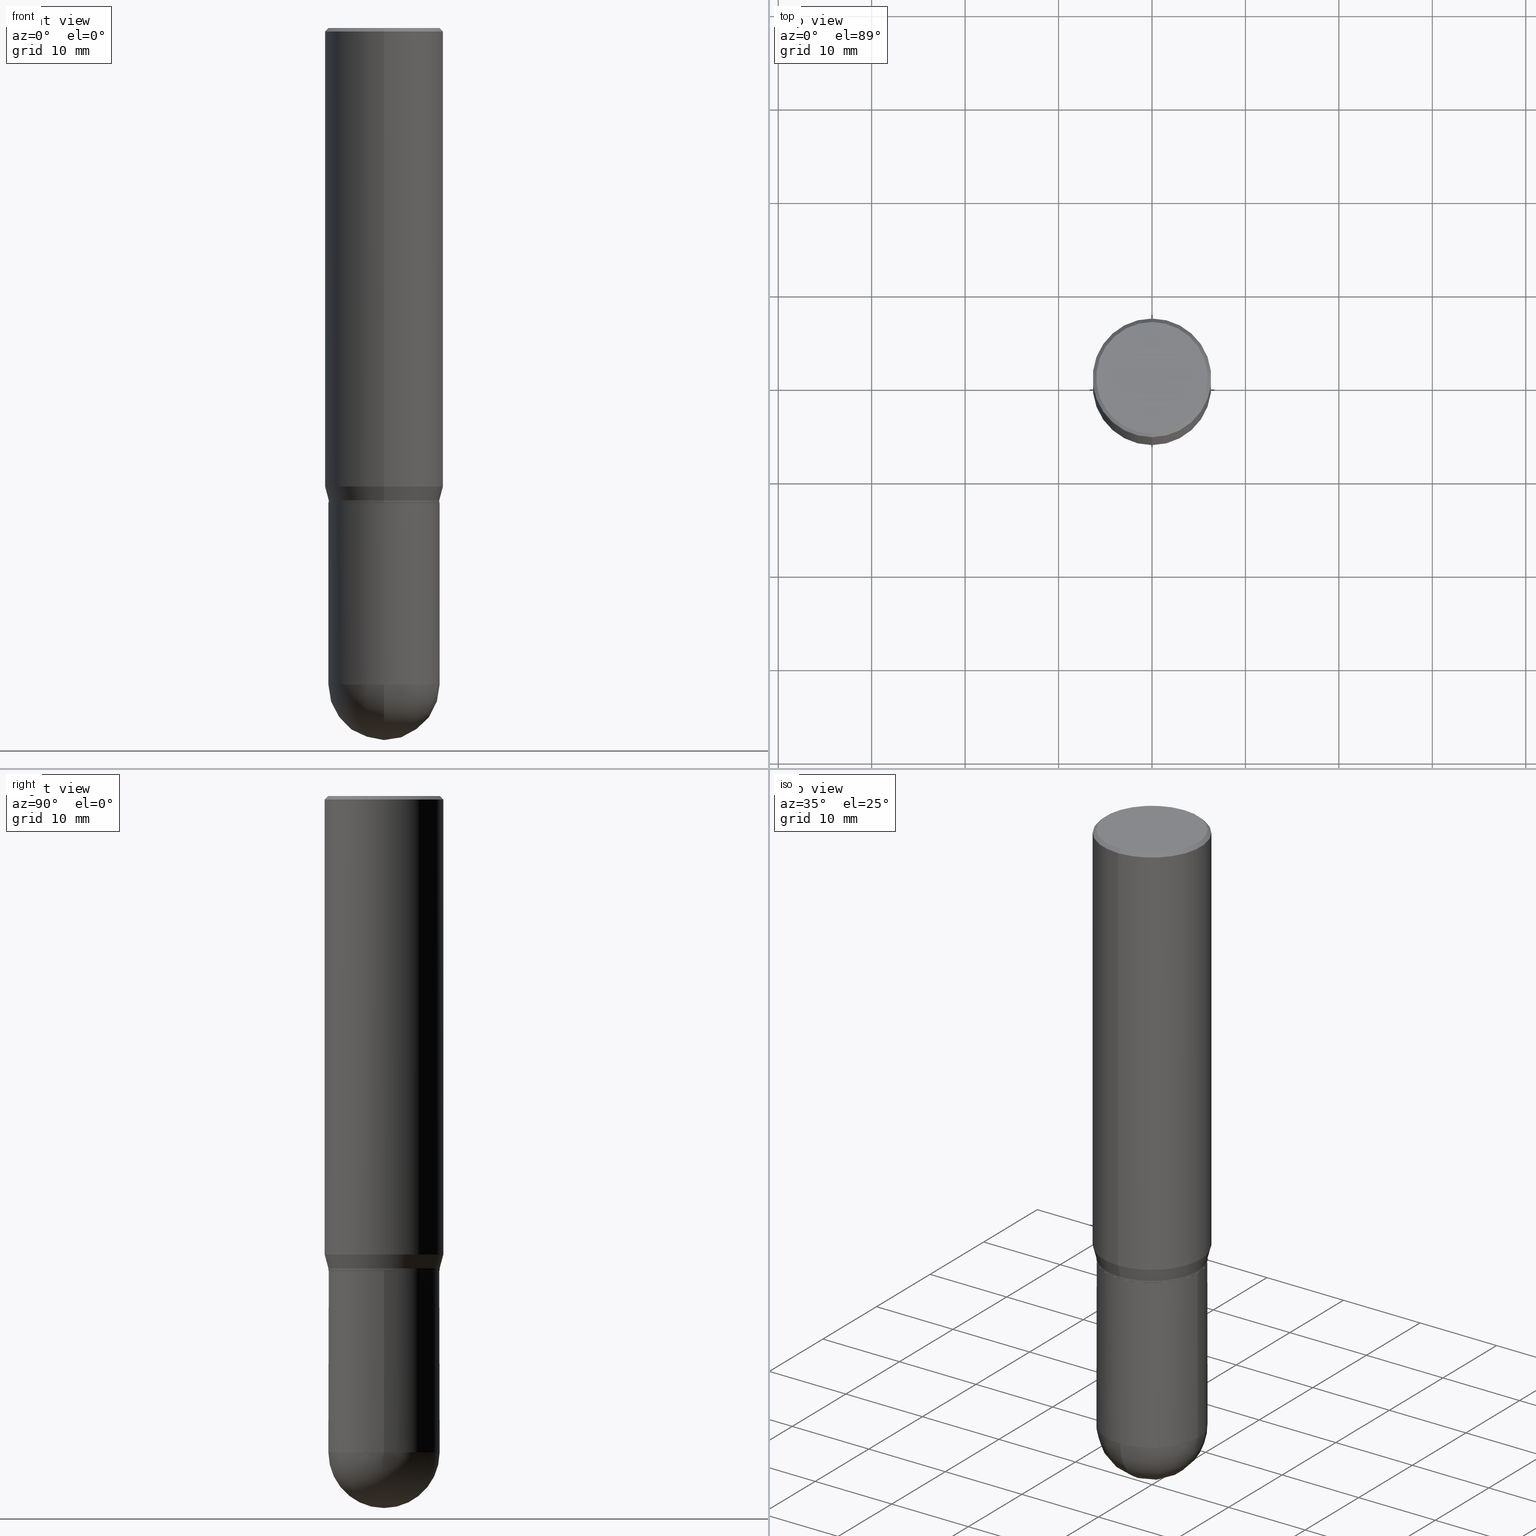
[diagram: canonical four-view strip — front | top / right | iso, engineering-drawing reading convention]
A machine part, canonical four-view strip (front | top / right | iso — engineering-drawing reading convention). The complete STEP part file that produces these views, byte-faithful:
ISO-10303-21;
HEADER;
FILE_DESCRIPTION (( 'STEP AP203' ),
    '1' );
FILE_NAME ('30500.STEP',
    '2024-03-08T15:28:09',
    ( '' ),
    ( '' ),
    'SwSTEP 2.0',
    'SolidWorks 2023',
    '' );
FILE_SCHEMA (( 'CONFIG_CONTROL_DESIGN' ));
ENDSEC;

DATA;
#1 = DIRECTION ( 'NONE',  ( -6.982962677686265922E-15, -1.000000000000000000, 3.503866601536036525E-15 ) ) ;
#2 = APPROVAL_ROLE ( '' ) ;
#3 = CARTESIAN_POINT ( 'NONE',  ( 1.693368449338919598E-15, 0.2349999999999999867, -9.852262505269361309E-16 ) ) ;
#4 = ORIENTED_EDGE ( 'NONE', *, *, #336, .T. ) ;
#5 = COORDINATED_UNIVERSAL_TIME_OFFSET ( 5, 0, .BEHIND. ) ;
#6 = FACE_OUTER_BOUND ( 'NONE', #465, .T. ) ;
#7 = VERTEX_POINT ( 'NONE', #25 ) ;
#8 = CIRCLE ( 'NONE', #470, 0.2500000000000000000 ) ;
#9 = DIRECTION ( 'NONE',  ( -6.982962677686265922E-15, -1.000000000000000000, 3.491087603084271538E-15 ) ) ;
#10 = CARTESIAN_POINT ( 'NONE',  ( 6.743143432567249767E-29, -9.684746511676618226E-15, -2.765600000000000058 ) ) ;
#11 = ORIENTED_EDGE ( 'NONE', *, *, #509, .F. ) ;
#12 = DIRECTION ( 'NONE',  ( -6.982962677686265922E-15, -1.000000000000000000, 3.491087603084271144E-15 ) ) ;
#13 = EDGE_LOOP ( 'NONE', ( #412, #492 ) ) ;
#14 = AXIS2_PLACEMENT_3D ( 'NONE', #136, #347, #141 ) ;
#15 = APPROVAL_PERSON_ORGANIZATION ( #105, #309, #64 ) ;
#16 = EDGE_CURVE ( 'NONE', #51, #308, #266, .T. ) ;
#17 = CARTESIAN_POINT ( 'NONE',  ( 4.891487500792091851E-29, -6.982175206168543076E-15, -2.000000000000000444 ) ) ;
#18 = EDGE_LOOP ( 'NONE', ( #277, #252, #447, #131 ) ) ;
#19 = DIRECTION ( 'NONE',  ( 1.000000000000000000, -6.982962677686269077E-15, 0.000000000000000000 ) ) ;
#20 = ORIENTED_EDGE ( 'NONE', *, *, #229, .T. ) ;
#21 =( CONVERSION_BASED_UNIT ( 'INCH', #342 ) LENGTH_UNIT ( ) NAMED_UNIT ( #271 ) );
#22 = EDGE_LOOP ( 'NONE', ( #500, #244 ) ) ;
#23 = AXIS2_PLACEMENT_3D ( 'NONE', #197, #35, #238 ) ;
#24 = DIRECTION ( 'NONE',  ( -2.445743750396045645E-29, 3.491087603084271538E-15, 1.000000000000000000 ) ) ;
#25 = CARTESIAN_POINT ( 'NONE',  ( -1.636806451649611410E-15, -0.2344000000000068529, -1.989999999999999547 ) ) ;
#26 = DIRECTION ( 'NONE',  ( 6.982962677686265922E-15, 1.000000000000000000, -3.491643216902136408E-15 ) ) ;
#27 = CARTESIAN_POINT ( 'NONE',  ( 6.743143432567249767E-29, -9.684746511676618226E-15, -2.765600000000000058 ) ) ;
#28 = AXIS2_PLACEMENT_3D ( 'NONE', #299, #300, #417 ) ;
#29 = EDGE_CURVE ( 'NONE', #407, #51, #383, .T. ) ;
#30 = AXIS2_PLACEMENT_3D ( 'NONE', #219, #310, #382 ) ;
#31 = LINE ( 'NONE', #378, #428 ) ;
#32 = ORIENTED_EDGE ( 'NONE', *, *, #167, .T. ) ;
#33 = PERSON_AND_ORGANIZATION ( #350, #410 ) ;
#34 = CARTESIAN_POINT ( 'NONE',  ( 4.890264628916893960E-29, -6.980429662367000588E-15, -1.999500000000000277 ) ) ;
#35 = DIRECTION ( 'NONE',  ( -2.445468806185136597E-29, 3.491481338843145583E-15, 1.000000000000000000 ) ) ;
#36 = CC_DESIGN_PERSON_AND_ORGANIZATION_ASSIGNMENT ( #33, #473, ( #87 ) ) ;
#37 = AXIS2_PLACEMENT_3D ( 'NONE', #430, #228, #193 ) ;
#38 = CARTESIAN_POINT ( 'NONE',  ( 3.668615625594108632E-31, -5.236631404626464376E-17, -0.01500000000000016424 ) ) ;
#39 = DIRECTION ( 'NONE',  ( -6.982962677686265133E-15, -1.000000000000000000, 3.491087603084271144E-15 ) ) ;
#40 = EDGE_CURVE ( 'NONE', #436, #51, #99, .T. ) ;
#41 = LINE ( 'NONE', #471, #249 ) ;
#42 = MANIFOLD_SOLID_BREP ( 'Body-Move/Copy2[2]', #241 ) ;
#43 = ADVANCED_BREP_SHAPE_REPRESENTATION ( '30500', ( #47, #42, #30 ), #278 ) ;
#44 = CARTESIAN_POINT ( 'NONE',  ( 1.636806451649709623E-15, 0.2343999999999930306, -2.000000000000000888 ) ) ;
#45 = AXIS2_PLACEMENT_3D ( 'NONE', #38, #240, #511 ) ;
#46 = AXIS2_PLACEMENT_3D ( 'NONE', #182, #345, #26 ) ;
#47 = MANIFOLD_SOLID_BREP ( 'Body-Move/Copy2[1]', #481 ) ;
#48 = FACE_OUTER_BOUND ( 'NONE', #57, .T. ) ;
#49 = VERTEX_POINT ( 'NONE', #468 ) ;
#50 = FACE_OUTER_BOUND ( 'NONE', #74, .T. ) ;
#51 = VERTEX_POINT ( 'NONE', #386 ) ;
#52 = CC_DESIGN_PERSON_AND_ORGANIZATION_ASSIGNMENT ( #431, #151, ( #504 ) ) ;
#53 = CARTESIAN_POINT ( 'NONE',  ( 0.000000000000000000, 0.000000000000000000, 0.000000000000000000 ) ) ;
#54 = VERTEX_POINT ( 'NONE', #222 ) ;
#55 = DIRECTION ( 'NONE',  ( -2.445743750396045645E-29, 3.491087603084271144E-15, 1.000000000000000000 ) ) ;
#56 = ORIENTED_EDGE ( 'NONE', *, *, #336, .F. ) ;
#57 = EDGE_LOOP ( 'NONE', ( #291, #162, #248, #335, #288 ) ) ;
#58 = FACE_OUTER_BOUND ( 'NONE', #22, .T. ) ;
#59 = ORIENTED_EDGE ( 'NONE', *, *, #186, .F. ) ;
#60 = AXIS2_PLACEMENT_3D ( 'NONE', #477, #483, #39 ) ;
#61 = AXIS2_PLACEMENT_3D ( 'NONE', #10, #371, #243 ) ;
#62 = EDGE_LOOP ( 'NONE', ( #433, #452, #4, #143 ) ) ;
#63 = EDGE_CURVE ( 'NONE', #449, #246, #103, .T. ) ;
#64 = APPROVAL_ROLE ( '' ) ;
#65 = CARTESIAN_POINT ( 'NONE',  ( 7.326383869646227962E-29, -1.048879687701544429E-14, -3.000000000000000444 ) ) ;
#66 = FACE_OUTER_BOUND ( 'NONE', #62, .T. ) ;
#67 = VERTEX_POINT ( 'NONE', #227 ) ;
#68 = PRODUCT ( '30500', '30500', '', ( #375 ) ) ;
#69 = AXIS2_PLACEMENT_3D ( 'NONE', #348, #261, #224 ) ;
#70 = DIRECTION ( 'NONE',  ( 6.982962677686265922E-15, 1.000000000000000000, -2.330928322239131291E-15 ) ) ;
#71 = APPROVAL_STATUS ( 'not_yet_approved' ) ;
#72 = CARTESIAN_POINT ( 'NONE',  ( 6.743143432567249767E-29, -9.684746511676618226E-15, -2.765600000000000058 ) ) ;
#73 = FACE_OUTER_BOUND ( 'NONE', #187, .T. ) ;
#74 = EDGE_LOOP ( 'NONE', ( #478, #98, #349, #374 ) ) ;
#75 = APPROVAL_DATE_TIME ( #111, #309 ) ;
#76 = AXIS2_PLACEMENT_3D ( 'NONE', #421, #463, #305 ) ;
#77 = AXIS2_PLACEMENT_3D ( 'NONE', #339, #415, #107 ) ;
#78 = SPHERICAL_SURFACE ( 'NONE', #363, 0.2344000000000001083 ) ;
#79 = EDGE_CURVE ( 'NONE', #217, #414, #83, .T. ) ;
#80 = LINE ( 'NONE', #199, #175 ) ;
#81 = PRODUCT_DEFINITION ( 'UNKNOWN', '', #87, #203 ) ;
#82 = CARTESIAN_POINT ( 'NONE',  ( 4.867030063288131795E-29, -6.947264330137701209E-15, -1.990000000000000435 ) ) ;
#83 = CIRCLE ( 'NONE', #443, 0.2344000000000000250 ) ;
#84 = DIRECTION ( 'NONE',  ( -2.445743750396045645E-29, 3.491087603084271144E-15, 1.000000000000000000 ) ) ;
#85 = AXIS2_PLACEMENT_3D ( 'NONE', #82, #280, #281 ) ;
#86 = ORIENTED_EDGE ( 'NONE', *, *, #303, .T. ) ;
#87 = PRODUCT_DEFINITION_FORMATION_WITH_SPECIFIED_SOURCE ( 'ANY', '', #68, .NOT_KNOWN. ) ;
#88 = CARTESIAN_POINT ( 'NONE',  ( 4.867030063288131795E-29, -6.947264330137701209E-15, -1.990000000000000435 ) ) ;
#89 = ADVANCED_FACE ( 'NONE', ( #344 ), #138, .T. ) ;
#90 = EDGE_LOOP ( 'NONE', ( #370, #178, #333, #262 ) ) ;
#91 = DIRECTION ( 'NONE',  ( -2.445468806185136597E-29, 3.491481338843145583E-15, 1.000000000000000000 ) ) ;
#92 = ORIENTED_EDGE ( 'NONE', *, *, #503, .F. ) ;
#93 = DIRECTION ( 'NONE',  ( -6.982962677686266711E-15, -1.000000000000000000, 3.491087603084271144E-15 ) ) ;
#94 = ORIENTED_EDGE ( 'NONE', *, *, #396, .F. ) ;
#95 = CONICAL_SURFACE ( 'NONE', #388, 0.2338999999999999968, 0.7853981633974824739 ) ;
#96 = CONICAL_SURFACE ( 'NONE', #226, 0.2343999999999999417, 0.2617993877991500740 ) ;
#97 = CARTESIAN_POINT ( 'NONE',  ( 1.663735815782323276E-15, 0.2338999999999930302, -2.000000000000000888 ) ) ;
#98 = ORIENTED_EDGE ( 'NONE', *, *, #509, .T. ) ;
#99 = LINE ( 'NONE', #311, #233 ) ;
#100 = APPLICATION_PROTOCOL_DEFINITION ( 'international standard', 'config_control_design', 1994, #148 ) ;
#101 = EDGE_CURVE ( 'NONE', #414, #490, #163, .T. ) ;
#102 = DIRECTION ( 'NONE',  ( -2.445743750396045645E-29, 3.491087603084271144E-15, 1.000000000000000000 ) ) ;
#103 = CIRCLE ( 'NONE', #495, 0.2343999999999999417 ) ;
#104 = CONICAL_SURFACE ( 'NONE', #461, 0.2338999999999999968, 0.7853981633974824739 ) ;
#105 = PERSON_AND_ORGANIZATION ( #350, #410 ) ;
#106 = DIRECTION ( 'NONE',  ( -4.851104656540965064E-15, -0.7071067811865501263, -0.7071067811865449082 ) ) ;
#107 = DIRECTION ( 'NONE',  ( -6.982962677686265922E-15, -1.000000000000000000, 3.491643216902136408E-15 ) ) ;
#108 = CARTESIAN_POINT ( 'NONE',  ( 3.668615625594108632E-31, -5.236631404626464376E-17, -0.01500000000000016424 ) ) ;
#109 = LINE ( 'NONE', #264, #209 ) ;
#110 = DIRECTION ( 'NONE',  ( -2.445468806185136597E-29, 3.491481338843145583E-15, 1.000000000000000000 ) ) ;
#111 = DATE_AND_TIME ( #385, #315 ) ;
#112 = DIRECTION ( 'NONE',  ( -4.937700262164715281E-15, -0.7071067811865691111, 0.7071067811865257013 ) ) ;
#113 = FACE_OUTER_BOUND ( 'NONE', #13, .T. ) ;
#114 = CALENDAR_DATE ( 2024, 8, 3 ) ;
#115 = CARTESIAN_POINT ( 'NONE',  ( 4.724638880243287230E-29, -6.744013235726904476E-15, -1.931780007401925792 ) ) ;
#116 = EDGE_CURVE ( 'NONE', #331, #67, #337, .T. ) ;
#117 = DATE_AND_TIME ( #237, #487 ) ;
#118 = CIRCLE ( 'NONE', #304, 0.2349999999999999867 ) ;
#119 = VECTOR ( 'NONE', #292, 39.37007874015748143 ) ;
#120 = DIRECTION ( 'NONE',  ( -6.982962677686265922E-15, -1.000000000000000000, 3.278217592397115862E-15 ) ) ;
#121 = EDGE_CURVE ( 'NONE', #183, #407, #118, .T. ) ;
#122 = DIRECTION ( 'NONE',  ( -1.000000000000000000, 6.982962677686265922E-15, -4.876176775795935793E-29 ) ) ;
#123 = CYLINDRICAL_SURFACE ( 'NONE', #454, 0.2500000000000000000 ) ;
#124 = ORIENTED_EDGE ( 'NONE', *, *, #40, .T. ) ;
#125 = EDGE_CURVE ( 'NONE', #49, #494, #216, .T. ) ;
#126 = CARTESIAN_POINT ( 'NONE',  ( 6.743143432567249767E-29, -9.684746511676618226E-15, -2.765600000000000058 ) ) ;
#127 = VERTEX_POINT ( 'NONE', #65 ) ;
#128 = DIRECTION ( 'NONE',  ( -2.445468806185136597E-29, 3.491481338843145583E-15, 1.000000000000000000 ) ) ;
#129 = ORIENTED_EDGE ( 'NONE', *, *, #512, .F. ) ;
#130 = CARTESIAN_POINT ( 'NONE',  ( 1.665512172621674027E-15, 0.2343999999999999417, -8.183109341629529148E-16 ) ) ;
#131 = ORIENTED_EDGE ( 'NONE', *, *, #229, .F. ) ;
#132 = CARTESIAN_POINT ( 'NONE',  ( 4.891487500792091851E-29, -6.982175206168543076E-15, -2.000000000000000444 ) ) ;
#133 = EDGE_LOOP ( 'NONE', ( #11, #362, #124, #390 ) ) ;
#134 = CIRCLE ( 'NONE', #149, 0.2349999999999999867 ) ;
#135 = CARTESIAN_POINT ( 'NONE',  ( 0.2344000000000000250, -9.956308185845112006E-15, -2.765600000000000502 ) ) ;
#136 = CARTESIAN_POINT ( 'NONE',  ( 6.763188530385615666E-29, -9.656040790704605504E-15, -2.765600000000000502 ) ) ;
#137 = EDGE_CURVE ( 'NONE', #331, #449, #480, .T. ) ;
#138 = SPHERICAL_SURFACE ( 'NONE', #394, 0.2344000000000001083 ) ;
#139 = APPROVAL ( #322, 'UNSPECIFIED' ) ;
#140 = PERSON_AND_ORGANIZATION_ROLE ( 'design_owner' ) ;
#141 = DIRECTION ( 'NONE',  ( 1.000000000000000000, -6.982962677686269077E-15, 0.000000000000000000 ) ) ;
#142 = CC_DESIGN_APPROVAL ( #139, ( #87 ) ) ;
#143 = ORIENTED_EDGE ( 'NONE', *, *, #459, .T. ) ;
#144 = DIRECTION ( 'NONE',  ( -6.982962677686265922E-15, -1.000000000000000000, 3.491643216902136408E-15 ) ) ;
#145 = APPROVAL_DATE_TIME ( #359, #211 ) ;
#146 = FACE_OUTER_BOUND ( 'NONE', #90, .T. ) ;
#147 = PRODUCT_DEFINITION_SHAPE ( 'NONE', 'NONE',  #81 ) ;
#148 = APPLICATION_CONTEXT ( 'configuration controlled 3d designs of mechanical parts and assemblies' ) ;
#149 = AXIS2_PLACEMENT_3D ( 'NONE', #406, #401, #93 ) ;
#150 = CC_DESIGN_APPROVAL ( #309, ( #81 ) ) ;
#151 = PERSON_AND_ORGANIZATION_ROLE ( 'classification_officer' ) ;
#152 = CARTESIAN_POINT ( 'NONE',  ( 4.867030063288131795E-29, -6.947264330137701209E-15, -1.990000000000000435 ) ) ;
#153 = ADVANCED_FACE ( 'NONE', ( #146 ), #95, .T. ) ;
#154 = DATE_TIME_ROLE ( 'creation_date' ) ;
#155 = DIRECTION ( 'NONE',  ( -6.982962677686265133E-15, -1.000000000000000000, 3.496392483358699500E-15 ) ) ;
#156 = CARTESIAN_POINT ( 'NONE',  ( 1.776356839400297402E-15, 0.2499999999999932832, -1.931780007401926680 ) ) ;
#157 = AXIS2_PLACEMENT_3D ( 'NONE', #323, #91, #170 ) ;
#158 = CARTESIAN_POINT ( 'NONE',  ( 4.891487500792091851E-29, -6.982175206168543076E-15, -2.000000000000000444 ) ) ;
#159 = FACE_OUTER_BOUND ( 'NONE', #133, .T. ) ;
#160 = ADVANCED_FACE ( 'NONE', ( #73 ), #230, .T. ) ;
#161 = CARTESIAN_POINT ( 'NONE',  ( 6.763188530385615666E-29, -9.656040790704605504E-15, -2.765600000000000502 ) ) ;
#162 = ORIENTED_EDGE ( 'NONE', *, *, #79, .T. ) ;
#163 = CIRCLE ( 'NONE', #14, 0.2344000000000000250 ) ;
#164 = DIRECTION ( 'NONE',  ( -2.445743750396045645E-29, 3.491087603084271144E-15, 1.000000000000000000 ) ) ;
#165 = AXIS2_PLACEMENT_3D ( 'NONE', #53, #369, #12 ) ;
#166 = ORIENTED_EDGE ( 'NONE', *, *, #381, .F. ) ;
#167 = EDGE_CURVE ( 'NONE', #67, #246, #41, .T. ) ;
#168 = DIRECTION ( 'NONE',  ( -6.982962677686265922E-15, -1.000000000000000000, 3.503866601536036525E-15 ) ) ;
#169 = ORIENTED_EDGE ( 'NONE', *, *, #396, .T. ) ;
#170 = DIRECTION ( 'NONE',  ( 1.000000000000000000, -6.982962677686269077E-15, 0.000000000000000000 ) ) ;
#171 = ADVANCED_FACE ( 'NONE', ( #6 ), #78, .T. ) ;
#172 = ORIENTED_EDGE ( 'NONE', *, *, #324, .T. ) ;
#173 = DIRECTION ( 'NONE',  ( -6.982962677686265133E-15, -1.000000000000000000, 3.491087603084271144E-15 ) ) ;
#174 = VERTEX_POINT ( 'NONE', #156 ) ;
#175 = VECTOR ( 'NONE', #245, 39.37007874015748854 ) ;
#176 = APPLICATION_CONTEXT ( 'configuration controlled 3d designs of mechanical parts and assemblies' ) ;
#177 = LINE ( 'NONE', #255, #201 ) ;
#178 = ORIENTED_EDGE ( 'NONE', *, *, #137, .T. ) ;
#179 = ADVANCED_FACE ( 'NONE', ( #236 ), #321, .T. ) ;
#180 =( NAMED_UNIT ( * ) PLANE_ANGLE_UNIT ( ) SI_UNIT ( $, .RADIAN. ) );
#181 = DIRECTION ( 'NONE',  ( -2.445743750396045645E-29, 3.491087603084271538E-15, 1.000000000000000000 ) ) ;
#182 = CARTESIAN_POINT ( 'NONE',  ( 3.668615625594108632E-31, -5.236631404626464376E-17, -0.01500000000000016424 ) ) ;
#183 = VERTEX_POINT ( 'NONE', #3 ) ;
#184 = VECTOR ( 'NONE', #204, 39.37007874015748143 ) ;
#185 =( LENGTH_UNIT ( ) NAMED_UNIT ( * ) SI_UNIT ( $, .METRE. ) );
#186 = EDGE_CURVE ( 'NONE', #174, #436, #426, .T. ) ;
#187 = EDGE_LOOP ( 'NONE', ( #341, #380, #358, #220, #169 ) ) ;
#188 = DIRECTION ( 'NONE',  ( -6.982962677686265133E-15, -1.000000000000000000, 3.496392483358699500E-15 ) ) ;
#189 = DIRECTION ( 'NONE',  ( -2.445743750396045645E-29, 3.491087603084271144E-15, 1.000000000000000000 ) ) ;
#190 = EDGE_CURVE ( 'NONE', #246, #449, #284, .T. ) ;
#191 = CIRCLE ( 'NONE', #157, 0.2344000000000000250 ) ;
#192 = COORDINATED_UNIVERSAL_TIME_OFFSET ( 5, 0, .BEHIND. ) ;
#193 = DIRECTION ( 'NONE',  ( -6.982962677686265133E-15, -1.000000000000000000, 3.496392483358699500E-15 ) ) ;
#194 = ORIENTED_EDGE ( 'NONE', *, *, #137, .F. ) ;
#195 = PRODUCT_RELATED_PRODUCT_CATEGORY ( 'detail', '', ( #68 ) ) ;
#196 = DATE_AND_TIME ( #319, #302 ) ;
#197 = CARTESIAN_POINT ( 'NONE',  ( 4.890937612370273754E-29, -6.982962677686291954E-15, -2.000000000000000444 ) ) ;
#198 = PERSON_AND_ORGANIZATION_ROLE ( 'creator' ) ;
#199 = CARTESIAN_POINT ( 'NONE',  ( 1.665512172621722937E-15, 0.2343999999999930028, -1.990000000000001101 ) ) ;
#200 = AXIS2_PLACEMENT_3D ( 'NONE', #108, #389, #144 ) ;
#201 = VECTOR ( 'NONE', #464, 39.37007874015748143 ) ;
#202 = PLANE ( 'NONE',  #258 ) ;
#203 = DESIGN_CONTEXT ( 'detailed design', #176, 'design' ) ;
#204 = DIRECTION ( 'NONE',  ( 4.937700262164548831E-15, 0.7071067811865452413, -0.7071067811865497932 ) ) ;
#205 = ORIENTED_EDGE ( 'NONE', *, *, #408, .F. ) ;
#206 = CARTESIAN_POINT ( 'NONE',  ( 0.000000000000000000, 0.000000000000000000, 0.000000000000000000 ) ) ;
#207 = ORIENTED_EDGE ( 'NONE', *, *, #63, .F. ) ;
#208 = CARTESIAN_POINT ( 'NONE',  ( 1.776356839400298191E-15, 0.2499999999999999167, -0.01500000000000103681 ) ) ;
#209 = VECTOR ( 'NONE', #215, 39.37007874015748854 ) ;
#210 = ORIENTED_EDGE ( 'NONE', *, *, #286, .T. ) ;
#211 = APPROVAL ( #71, 'UNSPECIFIED' ) ;
#212 = DIRECTION ( 'NONE',  ( -6.982962677686265133E-15, -1.000000000000000000, 3.496392483358699500E-15 ) ) ;
#213 = ORIENTED_EDGE ( 'NONE', *, *, #303, .F. ) ;
#214 = EDGE_LOOP ( 'NONE', ( #367, #260, #254, #129 ) ) ;
#215 = DIRECTION ( 'NONE',  ( -1.807323732225328562E-15, -0.2588190451025179639, 0.9659258262890690894 ) ) ;
#216 = CIRCLE ( 'NONE', #76, 0.2343999999999999972 ) ;
#217 = VERTEX_POINT ( 'NONE', #351 ) ;
#218 = EDGE_CURVE ( 'NONE', #494, #49, #364, .T. ) ;
#219 = CARTESIAN_POINT ( 'NONE',  ( 0.000000000000000000, 0.000000000000000000, 0.000000000000000000 ) ) ;
#220 = ORIENTED_EDGE ( 'NONE', *, *, #290, .F. ) ;
#221 = COORDINATED_UNIVERSAL_TIME_OFFSET ( 5, 0, .BEHIND. ) ;
#222 = CARTESIAN_POINT ( 'NONE',  ( 1.720934506011010366E-15, 0.2343999999999930028, -1.990000000000001101 ) ) ;
#223 = ADVANCED_FACE ( 'NONE', ( #113 ), #353, .F. ) ;
#224 = DIRECTION ( 'NONE',  ( 6.982962677686265922E-15, 1.000000000000000000, -3.491087603084271538E-15 ) ) ;
#225 = ORIENTED_EDGE ( 'NONE', *, *, #286, .F. ) ;
#226 = AXIS2_PLACEMENT_3D ( 'NONE', #152, #318, #155 ) ;
#227 = CARTESIAN_POINT ( 'NONE',  ( -1.633314970310768600E-15, -0.2339000000000069635, -1.999999999999999334 ) ) ;
#228 = DIRECTION ( 'NONE',  ( -2.445743750396045645E-29, 3.491087603084271144E-15, 1.000000000000000000 ) ) ;
#229 = EDGE_CURVE ( 'NONE', #54, #7, #314, .T. ) ;
#230 = CYLINDRICAL_SURFACE ( 'NONE', #294, 0.2344000000000000250 ) ;
#231 = EDGE_CURVE ( 'NONE', #217, #494, #274, .T. ) ;
#232 = ORIENTED_EDGE ( 'NONE', *, *, #29, .T. ) ;
#233 = VECTOR ( 'NONE', #181, 39.37007874015748143 ) ;
#234 = CIRCLE ( 'NONE', #400, 0.2343999999999999417 ) ;
#235 = PERSON_AND_ORGANIZATION ( #350, #410 ) ;
#236 = FACE_OUTER_BOUND ( 'NONE', #214, .T. ) ;
#237 = CALENDAR_DATE ( 2024, 8, 3 ) ;
#238 = DIRECTION ( 'NONE',  ( 1.000000000000000000, -6.982962677686265922E-15, 0.000000000000000000 ) ) ;
#239 = ADVANCED_FACE ( 'NONE', ( #440 ), #409, .T. ) ;
#240 = DIRECTION ( 'NONE',  ( 2.445743750396045645E-29, -3.491087603084271144E-15, -1.000000000000000000 ) ) ;
#241 = CLOSED_SHELL ( 'NONE', ( #179, #153, #239, #368, #263, #360, #453, #466, #472, #450, #425, #488 ) ) ;
#242 = CIRCLE ( 'NONE', #395, 0.2344000000000001083 ) ;
#243 = DIRECTION ( 'NONE',  ( 6.982962677686265922E-15, 1.000000000000000000, 0.000000000000000000 ) ) ;
#244 = ORIENTED_EDGE ( 'NONE', *, *, #352, .T. ) ;
#245 = DIRECTION ( 'NONE',  ( 1.839019923739598738E-15, 0.2588190451025247363, 0.9659258262890673130 ) ) ;
#246 = VERTEX_POINT ( 'NONE', #432 ) ;
#247 = LINE ( 'NONE', #485, #119 ) ;
#248 = ORIENTED_EDGE ( 'NONE', *, *, #101, .T. ) ;
#249 = VECTOR ( 'NONE', #112, 39.37007874015748854 ) ;
#250 = DIRECTION ( 'NONE',  ( -6.982962677686265133E-15, -1.000000000000000000, 3.496392483358699500E-15 ) ) ;
#251 = AXIS2_PLACEMENT_3D ( 'NONE', #295, #404, #250 ) ;
#252 = ORIENTED_EDGE ( 'NONE', *, *, #63, .T. ) ;
#253 = DIRECTION ( 'NONE',  ( -2.445743750396045645E-29, 3.491087603084271144E-15, 1.000000000000000000 ) ) ;
#254 = ORIENTED_EDGE ( 'NONE', *, *, #324, .F. ) ;
#255 = CARTESIAN_POINT ( 'NONE',  ( -1.636806451649660122E-15, -0.2343999999999999417, 8.183109341629529148E-16 ) ) ;
#256 = CARTESIAN_POINT ( 'NONE',  ( -1.715124499442882299E-15, -0.2500000000000000555, -0.01499999999999929168 ) ) ;
#257 = DIRECTION ( 'NONE',  ( -6.982962677686266711E-15, -1.000000000000000000, 3.491087603084271144E-15 ) ) ;
#258 = AXIS2_PLACEMENT_3D ( 'NONE', #484, #365, #9 ) ;
#259 = APPROVAL_STATUS ( 'not_yet_approved' ) ;
#260 = ORIENTED_EDGE ( 'NONE', *, *, #416, .T. ) ;
#261 = DIRECTION ( 'NONE',  ( 2.445743750396045085E-29, -3.491087603084271538E-15, -1.000000000000000000 ) ) ;
#262 = ORIENTED_EDGE ( 'NONE', *, *, #167, .F. ) ;
#263 = ADVANCED_FACE ( 'NONE', ( #356 ), #96, .T. ) ;
#264 = CARTESIAN_POINT ( 'NONE',  ( -1.636806451649611410E-15, -0.2344000000000068529, -1.989999999999999547 ) ) ;
#265 = ORIENTED_EDGE ( 'NONE', *, *, #381, .T. ) ;
#266 = CIRCLE ( 'NONE', #200, 0.2500000000000000000 ) ;
#267 = AXIS2_PLACEMENT_3D ( 'NONE', #357, #189, #120 ) ;
#268 = AXIS2_PLACEMENT_3D ( 'NONE', #161, #128, #19 ) ;
#269 = COORDINATED_UNIVERSAL_TIME_OFFSET ( 5, 0, .BEHIND. ) ;
#270 = DIRECTION ( 'NONE',  ( 6.982962677686265922E-15, 1.000000000000000000, -2.330928322239131291E-15 ) ) ;
#271 = DIMENSIONAL_EXPONENTS ( 1.000000000000000000, 0.000000000000000000, 0.000000000000000000, 0.000000000000000000, 0.000000000000000000, 0.000000000000000000, 0.000000000000000000 ) ;
#272 = PERSON_AND_ORGANIZATION ( #350, #410 ) ;
#273 = EDGE_CURVE ( 'NONE', #436, #174, #8, .T. ) ;
#274 = LINE ( 'NONE', #399, #340 ) ;
#275 = CALENDAR_DATE ( 2024, 8, 3 ) ;
#276 = DIRECTION ( 'NONE',  ( -2.445743750396045645E-29, 3.491087603084271144E-15, 1.000000000000000000 ) ) ;
#277 = ORIENTED_EDGE ( 'NONE', *, *, #416, .F. ) ;
#278 =( GEOMETRIC_REPRESENTATION_CONTEXT ( 3 ) GLOBAL_UNCERTAINTY_ASSIGNED_CONTEXT ( ( #445 ) ) GLOBAL_UNIT_ASSIGNED_CONTEXT ( ( #21, #180, #307 ) ) REPRESENTATION_CONTEXT ( 'NONE', 'WORKASPACE' ) );
#279 = SHAPE_DEFINITION_REPRESENTATION ( #147, #43 ) ;
#280 = DIRECTION ( 'NONE',  ( -2.445743750396045645E-29, 3.491087603084271144E-15, 1.000000000000000000 ) ) ;
#281 = DIRECTION ( 'NONE',  ( -6.982962677686265133E-15, -1.000000000000000000, 3.496392483358699500E-15 ) ) ;
#282 = DIRECTION ( 'NONE',  ( 1.000000000000000000, -6.982962677686266711E-15, 4.876176775795936353E-29 ) ) ;
#283 = VERTEX_POINT ( 'NONE', #439 ) ;
#284 = CIRCLE ( 'NONE', #37, 0.2343999999999999417 ) ;
#285 = CIRCLE ( 'NONE', #61, 0.2344000000000001083 ) ;
#286 = EDGE_CURVE ( 'NONE', #54, #174, #80, .T. ) ;
#287 = FACE_OUTER_BOUND ( 'NONE', #458, .T. ) ;
#288 = ORIENTED_EDGE ( 'NONE', *, *, #218, .F. ) ;
#289 = CARTESIAN_POINT ( 'NONE',  ( -1.663670764459595899E-15, -0.2349999999999999867, 6.555849229226711764E-16 ) ) ;
#290 = EDGE_CURVE ( 'NONE', #490, #49, #247, .T. ) ;
#291 = ORIENTED_EDGE ( 'NONE', *, *, #231, .F. ) ;
#292 = DIRECTION ( 'NONE',  ( -2.445468806185136877E-29, 3.491481338843145188E-15, 1.000000000000000000 ) ) ;
#293 = ORIENTED_EDGE ( 'NONE', *, *, #352, .F. ) ;
#294 = AXIS2_PLACEMENT_3D ( 'NONE', #320, #361, #398 ) ;
#295 = CARTESIAN_POINT ( 'NONE',  ( 4.867030063288131795E-29, -6.947264330137701209E-15, -1.990000000000000435 ) ) ;
#296 = CIRCLE ( 'NONE', #268, 0.2344000000000000250 ) ;
#297 = EDGE_LOOP ( 'NONE', ( #225, #20, #486, #59 ) ) ;
#298 = PLANE ( 'NONE',  #69 ) ;
#299 = CARTESIAN_POINT ( 'NONE',  ( 4.891487500792091851E-29, -6.982175206168543076E-15, -2.000000000000000444 ) ) ;
#300 = DIRECTION ( 'NONE',  ( -2.445743750396045645E-29, 3.491087603084271144E-15, 1.000000000000000000 ) ) ;
#301 = APPLICATION_PROTOCOL_DEFINITION ( 'international standard', 'config_control_design', 1994, #176 ) ;
#302 = LOCAL_TIME ( 10, 28, 9.000000000000000000, #429 ) ;
#303 = EDGE_CURVE ( 'NONE', #127, #414, #242, .T. ) ;
#304 = AXIS2_PLACEMENT_3D ( 'NONE', #460, #102, #257 ) ;
#305 = DIRECTION ( 'NONE',  ( 1.000000000000000000, -6.982962677686265922E-15, 0.000000000000000000 ) ) ;
#306 = CIRCLE ( 'NONE', #77, 0.2500000000000000000 ) ;
#307 =( NAMED_UNIT ( * ) SI_UNIT ( $, .STERADIAN. ) SOLID_ANGLE_UNIT ( ) );
#308 = VERTEX_POINT ( 'NONE', #208 ) ;
#309 = APPROVAL ( #259, 'UNSPECIFIED' ) ;
#310 = DIRECTION ( 'NONE',  ( 0.000000000000000000, 0.000000000000000000, 1.000000000000000000 ) ) ;
#311 = CARTESIAN_POINT ( 'NONE',  ( -1.745740669421566480E-15, -0.2500000000000000000, 8.727719007710677859E-16 ) ) ;
#312 = DATE_AND_TIME ( #275, #420 ) ;
#313 = DIRECTION ( 'NONE',  ( -1.000000000000000000, 6.982962677686265922E-15, -4.883557194083112901E-29 ) ) ;
#314 = CIRCLE ( 'NONE', #85, 0.2343999999999999417 ) ;
#315 = LOCAL_TIME ( 10, 28, 9.000000000000000000, #221 ) ;
#316 = ADVANCED_FACE ( 'NONE', ( #48 ), #446, .T. ) ;
#317 = PERSON_AND_ORGANIZATION_ROLE ( 'design_supplier' ) ;
#318 = DIRECTION ( 'NONE',  ( -2.445743750396045645E-29, 3.491087603084271144E-15, 1.000000000000000000 ) ) ;
#319 = CALENDAR_DATE ( 2024, 8, 3 ) ;
#320 = CARTESIAN_POINT ( 'NONE',  ( 0.000000000000000000, 0.000000000000000000, 0.000000000000000000 ) ) ;
#321 = CYLINDRICAL_SURFACE ( 'NONE', #60, 0.2343999999999999417 ) ;
#322 = APPROVAL_STATUS ( 'not_yet_approved' ) ;
#323 = CARTESIAN_POINT ( 'NONE',  ( 6.763188530385615666E-29, -9.656040790704605504E-15, -2.765600000000000502 ) ) ;
#324 = EDGE_CURVE ( 'NONE', #7, #54, #234, .T. ) ;
#325 = DIRECTION ( 'NONE',  ( -6.982962677686265922E-15, -1.000000000000000000, 3.503866601536036525E-15 ) ) ;
#326 = ORIENTED_EDGE ( 'NONE', *, *, #101, .F. ) ;
#327 = CC_DESIGN_DATE_AND_TIME_ASSIGNMENT ( #312, #154, ( #81 ) ) ;
#328 = CONICAL_SURFACE ( 'NONE', #251, 0.2343999999999999417, 0.2617993877991500740 ) ;
#329 = APPROVAL_PERSON_ORGANIZATION ( #438, #139, #2 ) ;
#330 = DIRECTION ( 'NONE',  ( -2.445468806185136597E-29, 3.491481338843145583E-15, 1.000000000000000000 ) ) ;
#331 = VERTEX_POINT ( 'NONE', #97 ) ;
#332 = CARTESIAN_POINT ( 'NONE',  ( -1.665512172621607566E-15, -0.2344000000000097395, -2.765600000000000058 ) ) ;
#333 = ORIENTED_EDGE ( 'NONE', *, *, #190, .F. ) ;
#334 = DIRECTION ( 'NONE',  ( -7.105427357601000281E-15, -1.000000000000000000, 0.000000000000000000 ) ) ;
#335 = ORIENTED_EDGE ( 'NONE', *, *, #290, .T. ) ;
#336 = EDGE_CURVE ( 'NONE', #183, #308, #411, .T. ) ;
#337 = CIRCLE ( 'NONE', #28, 0.2338999999999999968 ) ;
#338 = CONICAL_SURFACE ( 'NONE', #46, 0.2500000000000000000, 0.7853981633974485010 ) ;
#339 = CARTESIAN_POINT ( 'NONE',  ( 3.668615625594108632E-31, -5.236631404626464376E-17, -0.01500000000000016424 ) ) ;
#340 = VECTOR ( 'NONE', #397, 39.37007874015748143 ) ;
#341 = ORIENTED_EDGE ( 'NONE', *, *, #422, .T. ) ;
#342 = LENGTH_MEASURE_WITH_UNIT ( LENGTH_MEASURE( 0.02539999999999999897 ), #185 );
#343 = ORIENTED_EDGE ( 'NONE', *, *, #422, .F. ) ;
#344 = FACE_OUTER_BOUND ( 'NONE', #403, .T. ) ;
#345 = DIRECTION ( 'NONE',  ( 2.445743750396045645E-29, -3.491087603084271144E-15, -1.000000000000000000 ) ) ;
#346 = CC_DESIGN_SECURITY_CLASSIFICATION ( #504, ( #87 ) ) ;
#347 = DIRECTION ( 'NONE',  ( -2.445468806185136597E-29, 3.491481338843145583E-15, 1.000000000000000000 ) ) ;
#348 = CARTESIAN_POINT ( 'NONE',  ( 1.640996229256272519E-15, 0.2349999999999999867, -9.028159186258698676E-16 ) ) ;
#349 = ORIENTED_EDGE ( 'NONE', *, *, #16, .F. ) ;
#350 = PERSON ( 'UNSPECIFIED', 'UNSPECIFIED', 'UNSPECIFIED', ('UNSPECIFIED'), ('UNSPECIFIED'), ('UNSPECIFIED') ) ;
#351 = CARTESIAN_POINT ( 'NONE',  ( -0.2344000000000000250, -6.653989561573773518E-15, -2.765600000000000502 ) ) ;
#352 = EDGE_CURVE ( 'NONE', #407, #183, #134, .T. ) ;
#353 = PLANE ( 'NONE',  #510 ) ;
#354 = VECTOR ( 'NONE', #106, 39.37007874015748143 ) ;
#355 = VECTOR ( 'NONE', #448, 39.37007874015748143 ) ;
#356 = FACE_OUTER_BOUND ( 'NONE', #372, .T. ) ;
#357 = CARTESIAN_POINT ( 'NONE',  ( 4.724638880243287230E-29, -6.744013235726904476E-15, -1.931780007401925792 ) ) ;
#358 = ORIENTED_EDGE ( 'NONE', *, *, #125, .F. ) ;
#359 = DATE_AND_TIME ( #114, #434 ) ;
#360 = ADVANCED_FACE ( 'NONE', ( #366 ), #328, .T. ) ;
#361 = DIRECTION ( 'NONE',  ( -2.445468806185136597E-29, 3.491481338843145583E-15, 1.000000000000000000 ) ) ;
#362 = ORIENTED_EDGE ( 'NONE', *, *, #186, .T. ) ;
#363 = AXIS2_PLACEMENT_3D ( 'NONE', #72, #313, #270 ) ;
#364 = CIRCLE ( 'NONE', #23, 0.2343999999999999972 ) ;
#365 = DIRECTION ( 'NONE',  ( -2.445743750396045085E-29, 3.491087603084271538E-15, 1.000000000000000000 ) ) ;
#366 = FACE_OUTER_BOUND ( 'NONE', #297, .T. ) ;
#367 = ORIENTED_EDGE ( 'NONE', *, *, #190, .T. ) ;
#368 = ADVANCED_FACE ( 'NONE', ( #50 ), #373, .T. ) ;
#369 = DIRECTION ( 'NONE',  ( -2.445743750396045645E-29, 3.491087603084271144E-15, 1.000000000000000000 ) ) ;
#370 = ORIENTED_EDGE ( 'NONE', *, *, #408, .T. ) ;
#371 = DIRECTION ( 'NONE',  ( 1.000000000000000000, -6.982962677686265922E-15, 4.883557194083112340E-29 ) ) ;
#372 = EDGE_LOOP ( 'NONE', ( #172, #210, #505, #92 ) ) ;
#373 = CYLINDRICAL_SURFACE ( 'NONE', #165, 0.2500000000000000000 ) ;
#374 = ORIENTED_EDGE ( 'NONE', *, *, #40, .F. ) ;
#375 = MECHANICAL_CONTEXT ( 'NONE', #148, 'mechanical' ) ;
#376 = ORIENTED_EDGE ( 'NONE', *, *, #16, .T. ) ;
#377 = AXIS2_PLACEMENT_3D ( 'NONE', #206, #330, #282 ) ;
#378 = CARTESIAN_POINT ( 'NONE',  ( 1.776356839400250267E-15, 0.2500000000000000000, -8.727719007710677859E-16 ) ) ;
#379 = CC_DESIGN_APPROVAL ( #211, ( #504 ) ) ;
#380 = ORIENTED_EDGE ( 'NONE', *, *, #231, .T. ) ;
#381 = EDGE_CURVE ( 'NONE', #127, #283, #285, .T. ) ;
#382 = DIRECTION ( 'NONE',  ( 1.000000000000000000, 0.000000000000000000, 0.000000000000000000 ) ) ;
#383 = LINE ( 'NONE', #256, #354 ) ;
#384 = CC_DESIGN_PERSON_AND_ORGANIZATION_ASSIGNMENT ( #499, #140, ( #68 ) ) ;
#385 = CALENDAR_DATE ( 2024, 8, 3 ) ;
#386 = CARTESIAN_POINT ( 'NONE',  ( -1.745740669421565889E-15, -0.2500000000000000555, -0.01499999999999929168 ) ) ;
#387 = DIRECTION ( 'NONE',  ( -6.982962677686265922E-15, -1.000000000000000000, 3.491087603084271144E-15 ) ) ;
#388 = AXIS2_PLACEMENT_3D ( 'NONE', #158, #474, #1 ) ;
#389 = DIRECTION ( 'NONE',  ( -2.445743750396045645E-29, 3.491087603084271144E-15, 1.000000000000000000 ) ) ;
#390 = ORIENTED_EDGE ( 'NONE', *, *, #459, .F. ) ;
#391 = DIRECTION ( 'NONE',  ( 5.024295867788231995E-15, 0.7071067811865739960, 0.7071067811865208164 ) ) ;
#392 = DATE_TIME_ROLE ( 'classification_date' ) ;
#393 = DIRECTION ( 'NONE',  ( 2.438088387897960049E-29, -3.491481338843145188E-15, -1.000000000000000000 ) ) ;
#394 = AXIS2_PLACEMENT_3D ( 'NONE', #27, #497, #70 ) ;
#395 = AXIS2_PLACEMENT_3D ( 'NONE', #126, #451, #334 ) ;
#396 = EDGE_CURVE ( 'NONE', #490, #283, #296, .T. ) ;
#397 = DIRECTION ( 'NONE',  ( -2.445468806185136877E-29, 3.491481338843145188E-15, 1.000000000000000000 ) ) ;
#398 = DIRECTION ( 'NONE',  ( 1.000000000000000000, -6.982962677686266711E-15, 4.876176775795936353E-29 ) ) ;
#399 = CARTESIAN_POINT ( 'NONE',  ( -0.2344000000000000250, 1.665512172621675013E-15, -1.152998385155750104E-29 ) ) ;
#400 = AXIS2_PLACEMENT_3D ( 'NONE', #88, #164, #212 ) ;
#401 = DIRECTION ( 'NONE',  ( -2.445743750396045645E-29, 3.491087603084271144E-15, 1.000000000000000000 ) ) ;
#402 = CC_DESIGN_PERSON_AND_ORGANIZATION_ASSIGNMENT ( #272, #317, ( #87 ) ) ;
#403 = EDGE_LOOP ( 'NONE', ( #166, #86, #442, #343 ) ) ;
#404 = DIRECTION ( 'NONE',  ( -2.445743750396045645E-29, 3.491087603084271144E-15, 1.000000000000000000 ) ) ;
#405 = ORIENTED_EDGE ( 'NONE', *, *, #116, .T. ) ;
#406 = CARTESIAN_POINT ( 'NONE',  ( 4.031091084301932557E-45, -5.754033761317450784E-31, -1.648206638021324526E-16 ) ) ;
#407 = VERTEX_POINT ( 'NONE', #289 ) ;
#408 = EDGE_CURVE ( 'NONE', #67, #331, #418, .T. ) ;
#409 = CONICAL_SURFACE ( 'NONE', #45, 0.2500000000000000000, 0.7853981633974485010 ) ;
#410 = ORGANIZATION ( 'UNSPECIFIED', 'UNSPECIFIED', '' ) ;
#411 = LINE ( 'NONE', #489, #184 ) ;
#412 = ORIENTED_EDGE ( 'NONE', *, *, #125, .T. ) ;
#413 = CARTESIAN_POINT ( 'NONE',  ( 1.665512172621723134E-15, 0.2343999999999929751, -1.999500000000001165 ) ) ;
#414 = VERTEX_POINT ( 'NONE', #332 ) ;
#415 = DIRECTION ( 'NONE',  ( -2.445743750396045645E-29, 3.491087603084271144E-15, 1.000000000000000000 ) ) ;
#416 = EDGE_CURVE ( 'NONE', #449, #54, #491, .T. ) ;
#417 = DIRECTION ( 'NONE',  ( -6.982962677686265922E-15, -1.000000000000000000, 3.503866601536036525E-15 ) ) ;
#418 = CIRCLE ( 'NONE', #496, 0.2338999999999999968 ) ;
#419 = CARTESIAN_POINT ( 'NONE',  ( 0.000000000000000000, 0.000000000000000000, 0.000000000000000000 ) ) ;
#420 = LOCAL_TIME ( 10, 28, 9.000000000000000000, #5 ) ;
#421 = CARTESIAN_POINT ( 'NONE',  ( 4.890937612370273754E-29, -6.982962677686291954E-15, -2.000000000000000444 ) ) ;
#422 = EDGE_CURVE ( 'NONE', #283, #217, #191, .T. ) ;
#423 = CARTESIAN_POINT ( 'NONE',  ( 6.763188530385615666E-29, -9.656040790704605504E-15, -2.765600000000000502 ) ) ;
#424 = EDGE_LOOP ( 'NONE', ( #293, #232, #376, #56 ) ) ;
#425 = ADVANCED_FACE ( 'NONE', ( #493 ), #104, .T. ) ;
#426 = CIRCLE ( 'NONE', #267, 0.2500000000000000000 ) ;
#427 = DIRECTION ( 'NONE',  ( 1.000000000000000000, -6.982962677686269077E-15, 0.000000000000000000 ) ) ;
#428 = VECTOR ( 'NONE', #24, 39.37007874015748143 ) ;
#429 = COORDINATED_UNIVERSAL_TIME_OFFSET ( 5, 0, .BEHIND. ) ;
#430 = CARTESIAN_POINT ( 'NONE',  ( 4.890264628916893960E-29, -6.980429662367000588E-15, -1.999500000000000277 ) ) ;
#431 = PERSON_AND_ORGANIZATION ( #350, #410 ) ;
#432 = CARTESIAN_POINT ( 'NONE',  ( -1.636806451649611212E-15, -0.2344000000000069084, -1.999499999999999611 ) ) ;
#433 = ORIENTED_EDGE ( 'NONE', *, *, #29, .F. ) ;
#434 = LOCAL_TIME ( 10, 28, 9.000000000000000000, #192 ) ;
#435 = DIRECTION ( 'NONE',  ( -6.982962677686265922E-15, -1.000000000000000000, 3.278217592397115862E-15 ) ) ;
#436 = VERTEX_POINT ( 'NONE', #455 ) ;
#437 = AXIS2_PLACEMENT_3D ( 'NONE', #419, #502, #173 ) ;
#438 = PERSON_AND_ORGANIZATION ( #350, #410 ) ;
#439 = CARTESIAN_POINT ( 'NONE',  ( 1.636806451649728555E-15, 0.2343999999999903938, -2.765600000000001391 ) ) ;
#440 = FACE_OUTER_BOUND ( 'NONE', #424, .T. ) ;
#441 = CARTESIAN_POINT ( 'NONE',  ( 0.000000000000000000, 0.000000000000000000, 0.000000000000000000 ) ) ;
#442 = ORIENTED_EDGE ( 'NONE', *, *, #79, .F. ) ;
#443 = AXIS2_PLACEMENT_3D ( 'NONE', #423, #110, #427 ) ;
#444 = APPROVAL_PERSON_ORGANIZATION ( #475, #211, #479 ) ;
#445 = UNCERTAINTY_MEASURE_WITH_UNIT (LENGTH_MEASURE( 1.000000000000000082E-05 ), #21, 'distance_accuracy_value', 'NONE');
#446 = CYLINDRICAL_SURFACE ( 'NONE', #377, 0.2344000000000000250 ) ;
#447 = ORIENTED_EDGE ( 'NONE', *, *, #512, .T. ) ;
#448 = DIRECTION ( 'NONE',  ( -2.445743750396045645E-29, 3.491087603084271538E-15, 1.000000000000000000 ) ) ;
#449 = VERTEX_POINT ( 'NONE', #413 ) ;
#450 = ADVANCED_FACE ( 'NONE', ( #287 ), #202, .F. ) ;
#451 = DIRECTION ( 'NONE',  ( -1.000000000000000000, 7.105427357601001070E-15, -4.926315508542082329E-29 ) ) ;
#452 = ORIENTED_EDGE ( 'NONE', *, *, #121, .F. ) ;
#453 = ADVANCED_FACE ( 'NONE', ( #159 ), #123, .T. ) ;
#454 = AXIS2_PLACEMENT_3D ( 'NONE', #441, #84, #387 ) ;
#455 = CARTESIAN_POINT ( 'NONE',  ( -1.745740669421519149E-15, -0.2500000000000067168, -1.931780007401924903 ) ) ;
#456 = EDGE_LOOP ( 'NONE', ( #194, #405, #32, #207 ) ) ;
#457 = FACE_OUTER_BOUND ( 'NONE', #18, .T. ) ;
#458 = EDGE_LOOP ( 'NONE', ( #205, #506 ) ) ;
#459 = EDGE_CURVE ( 'NONE', #308, #51, #306, .T. ) ;
#460 = CARTESIAN_POINT ( 'NONE',  ( 4.031091084301932557E-45, -5.754033761317450784E-31, -1.648206638021324526E-16 ) ) ;
#461 = AXIS2_PLACEMENT_3D ( 'NONE', #132, #253, #325 ) ;
#462 = CARTESIAN_POINT ( 'NONE',  ( -0.2343999999999999972, -6.653989561573773518E-15, -2.000000000000000444 ) ) ;
#463 = DIRECTION ( 'NONE',  ( -2.445468806185136597E-29, 3.491481338843145583E-15, 1.000000000000000000 ) ) ;
#464 = DIRECTION ( 'NONE',  ( -2.445743750396045645E-29, 3.491087603084271538E-15, 1.000000000000000000 ) ) ;
#465 = EDGE_LOOP ( 'NONE', ( #213, #265, #94, #326 ) ) ;
#466 = ADVANCED_FACE ( 'NONE', ( #66 ), #338, .T. ) ;
#467 = CYLINDRICAL_SURFACE ( 'NONE', #437, 0.2343999999999999417 ) ;
#468 = CARTESIAN_POINT ( 'NONE',  ( 0.2343999999999999972, -8.619769129335952076E-15, -2.000000000000000444 ) ) ;
#469 = APPROVAL_DATE_TIME ( #196, #139 ) ;
#470 = AXIS2_PLACEMENT_3D ( 'NONE', #115, #276, #435 ) ;
#471 = CARTESIAN_POINT ( 'NONE',  ( -1.633314970310768600E-15, -0.2339000000000069635, -1.999999999999999334 ) ) ;
#472 = ADVANCED_FACE ( 'NONE', ( #58 ), #298, .F. ) ;
#473 = PERSON_AND_ORGANIZATION_ROLE ( 'creator' ) ;
#474 = DIRECTION ( 'NONE',  ( -2.445743750396045645E-29, 3.491087603084271144E-15, 1.000000000000000000 ) ) ;
#475 = PERSON_AND_ORGANIZATION ( #350, #410 ) ;
#476 = CC_DESIGN_DATE_AND_TIME_ASSIGNMENT ( #117, #392, ( #504 ) ) ;
#477 = CARTESIAN_POINT ( 'NONE',  ( 0.000000000000000000, 0.000000000000000000, 0.000000000000000000 ) ) ;
#478 = ORIENTED_EDGE ( 'NONE', *, *, #273, .T. ) ;
#479 = APPROVAL_ROLE ( '' ) ;
#480 = LINE ( 'NONE', #508, #501 ) ;
#481 = CLOSED_SHELL ( 'NONE', ( #160, #89, #223, #171, #316 ) ) ;
#482 = SECURITY_CLASSIFICATION_LEVEL ( 'unclassified' ) ;
#483 = DIRECTION ( 'NONE',  ( -2.445743750396045645E-29, 3.491087603084271144E-15, 1.000000000000000000 ) ) ;
#484 = CARTESIAN_POINT ( 'NONE',  ( 4.891487500792091851E-29, -6.982175206168543076E-15, -2.000000000000000444 ) ) ;
#485 = CARTESIAN_POINT ( 'NONE',  ( 0.2344000000000000250, -1.636806451649661108E-15, 1.142975836246567575E-29 ) ) ;
#486 = ORIENTED_EDGE ( 'NONE', *, *, #503, .T. ) ;
#487 = LOCAL_TIME ( 10, 28, 9.000000000000000000, #269 ) ;
#488 = ADVANCED_FACE ( 'NONE', ( #457 ), #467, .T. ) ;
#489 = CARTESIAN_POINT ( 'NONE',  ( 1.745740669421566875E-15, 0.2499999999999999167, -0.01500000000000103681 ) ) ;
#490 = VERTEX_POINT ( 'NONE', #135 ) ;
#491 = LINE ( 'NONE', #130, #355 ) ;
#492 = ORIENTED_EDGE ( 'NONE', *, *, #218, .T. ) ;
#493 = FACE_OUTER_BOUND ( 'NONE', #456, .T. ) ;
#494 = VERTEX_POINT ( 'NONE', #462 ) ;
#495 = AXIS2_PLACEMENT_3D ( 'NONE', #34, #498, #188 ) ;
#496 = AXIS2_PLACEMENT_3D ( 'NONE', #17, #55, #168 ) ;
#497 = DIRECTION ( 'NONE',  ( -1.000000000000000000, 6.982962677686265922E-15, -4.883557194083112901E-29 ) ) ;
#498 = DIRECTION ( 'NONE',  ( -2.445743750396045645E-29, 3.491087603084271144E-15, 1.000000000000000000 ) ) ;
#499 = PERSON_AND_ORGANIZATION ( #350, #410 ) ;
#500 = ORIENTED_EDGE ( 'NONE', *, *, #121, .T. ) ;
#501 = VECTOR ( 'NONE', #391, 39.37007874015748854 ) ;
#502 = DIRECTION ( 'NONE',  ( -2.445743750396045645E-29, 3.491087603084271144E-15, 1.000000000000000000 ) ) ;
#503 = EDGE_CURVE ( 'NONE', #7, #436, #109, .T. ) ;
#504 = SECURITY_CLASSIFICATION ( '', '', #482 ) ;
#505 = ORIENTED_EDGE ( 'NONE', *, *, #273, .F. ) ;
#506 = ORIENTED_EDGE ( 'NONE', *, *, #116, .F. ) ;
#507 = CC_DESIGN_PERSON_AND_ORGANIZATION_ASSIGNMENT ( #235, #198, ( #81 ) ) ;
#508 = CARTESIAN_POINT ( 'NONE',  ( 1.661959458942923024E-15, 0.2338999999999930302, -2.000000000000000888 ) ) ;
#509 = EDGE_CURVE ( 'NONE', #174, #308, #31, .T. ) ;
#510 = AXIS2_PLACEMENT_3D ( 'NONE', #44, #393, #122 ) ;
#511 = DIRECTION ( 'NONE',  ( 6.982962677686265922E-15, 1.000000000000000000, -3.491643216902136408E-15 ) ) ;
#512 = EDGE_CURVE ( 'NONE', #246, #7, #177, .T. ) ;
ENDSEC;
END-ISO-10303-21;
